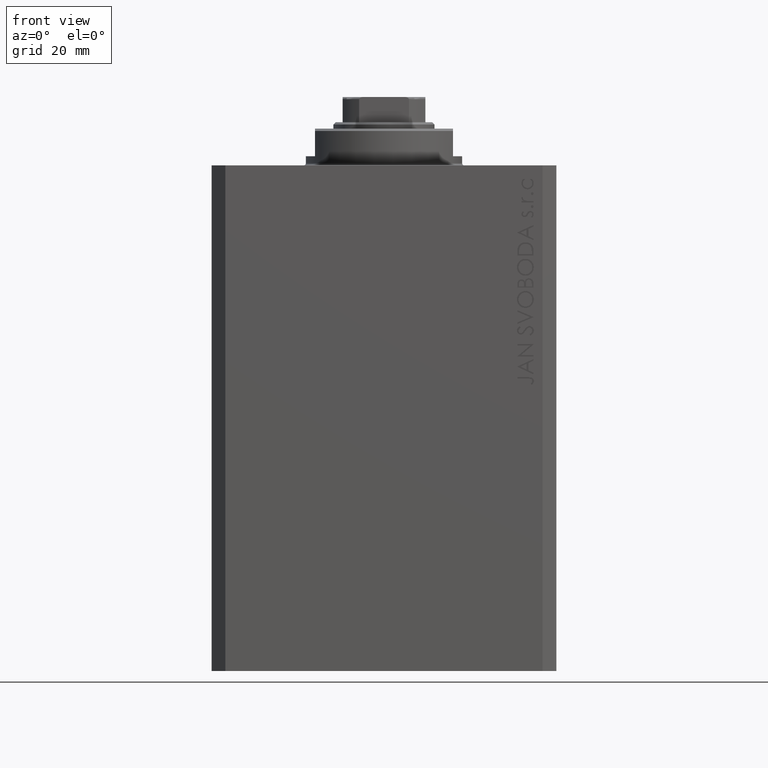
[diagram: clean part render]
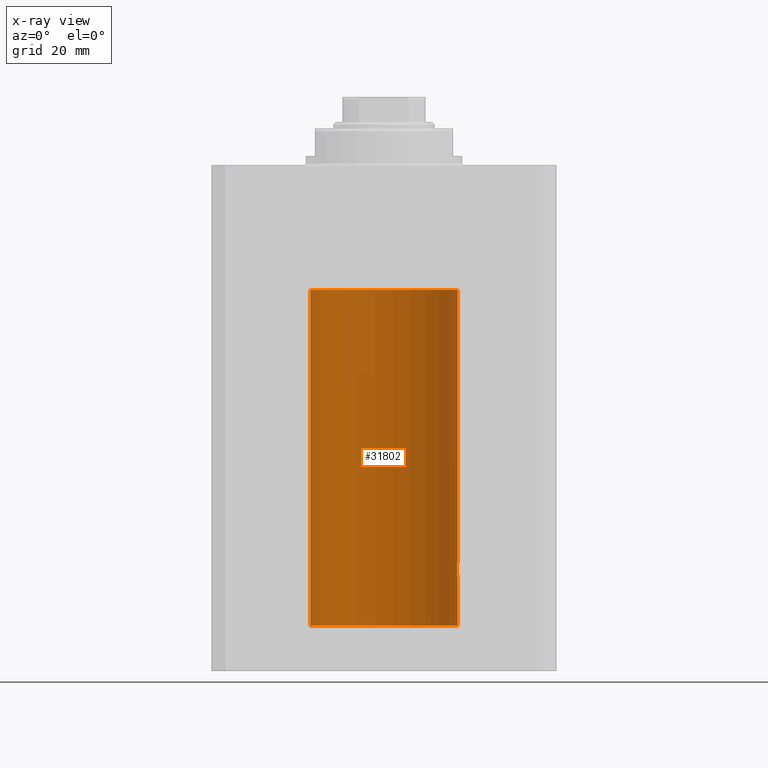
[diagram: x-ray — body ghosted, one internal face saturated and labeled with its STEP entity id]
A machine part, front view, then the same camera in x-ray: the body is ghosted and one INTERNAL B-rep face — a face not visible from any outside direction — is saturated and labeled: STEP entity #31802.
In plain terms, the highlighted cylindrical surface (partial cylindrical patch) has radius 16 mm, axis along (0, 0, 1).
Its self-contained STEP definition (entity closure, byte-faithful):
#1911 = DIRECTION ( 'NONE',  ( 1.000000000000000000, 0.000000000000000000, 0.000000000000000000 ) ) ;
#2775 = CARTESIAN_POINT ( 'NONE',  ( 15.99211620657850474, 0.5182628822511399225, -89.93608344894170159 ) ) ;
#2896 = FACE_OUTER_BOUND ( 'NONE', #43250, .T. ) ;
#4524 = ORIENTED_EDGE ( 'NONE', *, *, #21907, .F. ) ;
#5385 = CARTESIAN_POINT ( 'NONE',  ( 16.00000000000000000, 0.000000000000000000, -100.0999999999999943 ) ) ;
#5900 = LINE ( 'NONE', #46026, #7858 ) ;
#6306 = CIRCLE ( 'NONE', #29193, 16.00000000000000000 ) ;
#6503 = DIRECTION ( 'NONE',  ( 0.000000000000000000, 0.000000000000000000, 1.000000000000000000 ) ) ;
#7560 = CARTESIAN_POINT ( 'NONE',  ( 15.97588373855009536, 0.8864683965309503311, -86.20240655627672766 ) ) ;
#7858 = VECTOR ( 'NONE', #20472, 1000.000000000000000 ) ;
#8227 = CARTESIAN_POINT ( 'NONE',  ( -16.00000000000000000, 1.959434878635765131E-15, -100.0999999999999943 ) ) ;
#8261 = CARTESIAN_POINT ( 'NONE',  ( 16.00000000000000000, -2.738688404655786685E-23, -86.00000000000000000 ) ) ;
#8769 = CARTESIAN_POINT ( 'NONE',  ( -16.00000000000000000, 1.959434878635765131E-15, -100.0999999999999943 ) ) ;
#9381 = CARTESIAN_POINT ( 'NONE',  ( 16.00000000000000000, 0.000000000000000000, -27.10000000000000142 ) ) ;
#9485 = ORIENTED_EDGE ( 'NONE', *, *, #31308, .T. ) ;
#10170 = CARTESIAN_POINT ( 'NONE',  ( 15.95380611548778660, 1.219810915946573759, -89.59032870701324214 ) ) ;
#11369 = CARTESIAN_POINT ( 'NONE',  ( 15.87617168140110380, 1.986916736633999037, -87.73680934434936773 ) ) ;
#11834 = CARTESIAN_POINT ( 'NONE',  ( 15.94566414814287469, 1.320819617421907788, -86.49240758272487994 ) ) ;
#13658 = CARTESIAN_POINT ( 'NONE',  ( 0.000000000000000000, 0.000000000000000000, -27.10000000000000142 ) ) ;
#13848 = ORIENTED_EDGE ( 'NONE', *, *, #39155, .T. ) ;
#13869 = CYLINDRICAL_SURFACE ( 'NONE', #32842, 16.00000000000000000 ) ;
#14930 = CARTESIAN_POINT ( 'NONE',  ( 15.87450786638751410, 2.000000000000297096, -88.26124530359815878 ) ) ;
#15437 = CARTESIAN_POINT ( 'NONE',  ( 15.92095407913750726, 1.590131347295332009, -86.77998469042918828 ) ) ;
#15759 = CARTESIAN_POINT ( 'NONE',  ( 16.00000000000000000, 3.524002214059393877E-15, -90.00000000000000000 ) ) ;
#15834 = CARTESIAN_POINT ( 'NONE',  ( 16.00000000000000000, -2.738688404655786685E-23, -86.00000000000000000 ) ) ;
#16650 = AXIS2_PLACEMENT_3D ( 'NONE', #30575, #16955, #1911 ) ;
#16955 = DIRECTION ( 'NONE',  ( 0.000000000000000000, 0.000000000000000000, 1.000000000000000000 ) ) ;
#16994 = DIRECTION ( 'NONE',  ( -0.000000000000000000, -0.000000000000000000, 1.000000000000000000 ) ) ;
#17092 = VECTOR ( 'NONE', #45251, 1000.000000000000000 ) ;
#17179 = ORIENTED_EDGE ( 'NONE', *, *, #36685, .T. ) ;
#17347 = CARTESIAN_POINT ( 'NONE',  ( 15.98743782203464825, 0.6453927552190293904, -89.89754035852679692 ) ) ;
#17476 = CARTESIAN_POINT ( 'NONE',  ( 15.87450786638750699, 2.000000000000297096, -88.00000000000000000 ) ) ;
#18327 = CARTESIAN_POINT ( 'NONE',  ( 16.00000000000000000, 0.1305637488590863926, -85.99999999999998579 ) ) ;
#18413 = VERTEX_POINT ( 'NONE', #8769 ) ;
#20472 = DIRECTION ( 'NONE',  ( -0.000000000000000000, -0.000000000000000000, 1.000000000000000000 ) ) ;
#20842 = DIRECTION ( 'NONE',  ( 1.000000000000000000, 0.000000000000000000, 0.000000000000000000 ) ) ;
#21574 = ORIENTED_EDGE ( 'NONE', *, *, #29499, .T. ) ;
#21907 = EDGE_CURVE ( 'NONE', #37416, #18413, #39521, .T. ) ;
#22838 = CARTESIAN_POINT ( 'NONE',  ( 15.90582997788426312, 1.734897462761020082, -86.99646332855050446 ) ) ;
#23224 = VERTEX_POINT ( 'NONE', #9381 ) ;
#24522 = CARTESIAN_POINT ( 'NONE',  ( 16.00000000000000000, 3.524002214059393877E-15, -90.00000000000000000 ) ) ;
#24760 = CARTESIAN_POINT ( 'NONE',  ( 15.94550883254178331, 1.322613426523511881, -89.50588495029012392 ) ) ;
#25928 = CARTESIAN_POINT ( 'NONE',  ( 15.90454527605181667, 1.748004143318092174, -89.00616739381551668 ) ) ;
#25969 = CARTESIAN_POINT ( 'NONE',  ( 15.92911104305801828, 1.507378839264603476, -86.67893664295412748 ) ) ;
#26200 = CARTESIAN_POINT ( 'NONE',  ( 15.88249567060696243, 1.935716055827872539, -87.48027816021618719 ) ) ;
#26430 = CARTESIAN_POINT ( 'NONE',  ( 15.96887171920781689, 1.003448269354837441, -86.26505182542071282 ) ) ;
#26769 = VECTOR ( 'NONE', #32829, 1000.000000000000000 ) ;
#27624 = CARTESIAN_POINT ( 'NONE',  ( -16.00000000000000000, 1.959434878635765131E-15, -27.10000000000000142 ) ) ;
#27752 = DIRECTION ( 'NONE',  ( 1.000000000000000000, 0.000000000000000000, 0.000000000000000000 ) ) ;
#29078 = CARTESIAN_POINT ( 'NONE',  ( 15.99834953062734222, 0.2631943783489354982, -86.01308452963878892 ) ) ;
#29152 = B_SPLINE_CURVE_WITH_KNOTS ( 'NONE', 3,
 ( #24522, #42654, #35508, #2775, #17347, #31924, #42897, #10170, #24760, #35742, #25928, #33558, #14930, #44527 ),
 .UNSPECIFIED., .F., .F.,
 ( 4, 2, 2, 2, 2, 2, 4 ),
 ( 3.424160547694500162E-18, 0.0003912813346923356916, 0.0007825626693846680221, 0.001173844004077000082, 0.001565125338769331924, 0.002347688008154024883, 0.003130250677538718058 ),
 .UNSPECIFIED. ) ;
#29193 = AXIS2_PLACEMENT_3D ( 'NONE', #13658, #6503, #20842 ) ;
#29240 = CARTESIAN_POINT ( 'NONE',  ( 16.00000000000000000, 0.000000000000000000, -100.0999999999999943 ) ) ;
#29499 = EDGE_CURVE ( 'NONE', #38794, #43208, #34405, .T. ) ;
#29539 = CARTESIAN_POINT ( 'NONE',  ( 15.98747899434752817, 0.6443623600228916004, -86.10211550510818768 ) ) ;
#29774 = CARTESIAN_POINT ( 'NONE',  ( 15.88712192135845491, 1.897869642555071179, -87.35557946728211220 ) ) ;
#29795 = ORIENTED_EDGE ( 'NONE', *, *, #47239, .F. ) ;
#30206 = LINE ( 'NONE', #8227, #17092 ) ;
#30575 = CARTESIAN_POINT ( 'NONE',  ( 0.000000000000000000, 0.000000000000000000, -100.0999999999999943 ) ) ;
#31308 = EDGE_CURVE ( 'NONE', #32455, #38794, #29152, .T. ) ;
#31802 = ADVANCED_FACE ( 'NONE', ( #2896 ), #13869, .F. ) ;
#31924 = CARTESIAN_POINT ( 'NONE',  ( 15.97582125337101999, 0.8876008124445644576, -89.79704090617748591 ) ) ;
#32455 = VERTEX_POINT ( 'NONE', #15759 ) ;
#32829 = DIRECTION ( 'NONE',  ( -0.000000000000000000, -0.000000000000000000, 1.000000000000000000 ) ) ;
#32842 = AXIS2_PLACEMENT_3D ( 'NONE', #35858, #16994, #27752 ) ;
#32887 = EDGE_CURVE ( 'NONE', #37416, #32455, #35949, .T. ) ;
#33558 = CARTESIAN_POINT ( 'NONE',  ( 15.88135773388169092, 1.947448446433282854, -88.52472455433247944 ) ) ;
#33599 = CARTESIAN_POINT ( 'NONE',  ( 15.99207203775707065, 0.5197027266689088210, -86.06427960618061945 ) ) ;
#34405 = B_SPLINE_CURVE_WITH_KNOTS ( 'NONE', 3,
 ( #40992, #44570, #11369, #26200, #29774, #40525, #22838, #15437, #25969, #11834, #44338, #26430, #7560, #29539, #33599, #29078, #18327, #8261 ),
 .UNSPECIFIED., .F., .F.,
 ( 4, 2, 2, 2, 2, 2, 2, 2, 4 ),
 ( 0.003130250677538718058, 0.003521348247420690372, 0.003912445817302662686, 0.004303543387184635000, 0.004694640957066607313, 0.005085738526948579627, 0.005476836096830552808, 0.005867933666712525122, 0.006259031236594497435 ),
 .UNSPECIFIED. ) ;
#35508 = CARTESIAN_POINT ( 'NONE',  ( 15.99836014839681830, 0.2623923436743452187, -89.98699919334814012 ) ) ;
#35742 = CARTESIAN_POINT ( 'NONE',  ( 15.92096875784782739, 1.599058044721133331, -89.22922593843965444 ) ) ;
#35858 = CARTESIAN_POINT ( 'NONE',  ( 0.000000000000000000, 0.000000000000000000, -100.0999999999999943 ) ) ;
#35949 = LINE ( 'NONE', #29240, #26769 ) ;
#36036 = ORIENTED_EDGE ( 'NONE', *, *, #32887, .T. ) ;
#36685 = EDGE_CURVE ( 'NONE', #23224, #41159, #6306, .T. ) ;
#37416 = VERTEX_POINT ( 'NONE', #5385 ) ;
#38794 = VERTEX_POINT ( 'NONE', #17476 ) ;
#39155 = EDGE_CURVE ( 'NONE', #43208, #23224, #5900, .T. ) ;
#39521 = CIRCLE ( 'NONE', #16650, 16.00000000000000000 ) ;
#40525 = CARTESIAN_POINT ( 'NONE',  ( 15.89878974374255449, 1.797508500259969777, -87.11334888788564967 ) ) ;
#40992 = CARTESIAN_POINT ( 'NONE',  ( 15.87450786638750699, 2.000000000000297096, -88.00000000000000000 ) ) ;
#41159 = VERTEX_POINT ( 'NONE', #27624 ) ;
#42654 = CARTESIAN_POINT ( 'NONE',  ( 15.99999999999999645, 0.1323149458028788361, -90.00000000000002842 ) ) ;
#42897 = CARTESIAN_POINT ( 'NONE',  ( 15.96893716441426214, 1.002454028984434808, -89.73556042441214231 ) ) ;
#43208 = VERTEX_POINT ( 'NONE', #15834 ) ;
#43250 = EDGE_LOOP ( 'NONE', ( #29795, #4524, #36036, #9485, #21574, #13848, #17179 ) ) ;
#44338 = CARTESIAN_POINT ( 'NONE',  ( 15.95379436193629985, 1.219925354616377966, -86.40980009844315646 ) ) ;
#44527 = CARTESIAN_POINT ( 'NONE',  ( 15.87450786638750699, 2.000000000000297096, -88.00000000000000000 ) ) ;
#44570 = CARTESIAN_POINT ( 'NONE',  ( 15.87450786638751055, 2.000000000000297984, -87.86943869497294202 ) ) ;
#45251 = DIRECTION ( 'NONE',  ( -0.000000000000000000, -0.000000000000000000, 1.000000000000000000 ) ) ;
#46026 = CARTESIAN_POINT ( 'NONE',  ( 16.00000000000000000, 0.000000000000000000, -100.0999999999999943 ) ) ;
#47239 = EDGE_CURVE ( 'NONE', #18413, #41159, #30206, .T. ) ;